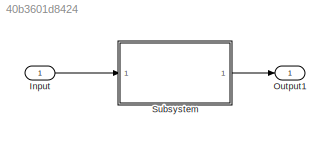
MODEL slx_40b3601d8424
KIND model
CONFIG AbsTol = auto
CONFIG EnableMultiTasking = off
CONFIG FixedStep = auto
CONFIG MaxStep = auto
CONFIG MinStep = auto
CONFIG RelTol = 1e-3
CONFIG SampleTimeConstraint = Unconstrained
CONFIG SolverName = FixedStepAuto
CONFIG StartTime = 0.0
CONFIG StopTime = T
BLOCK [Inport] Input
BLOCK [Outport] Output1
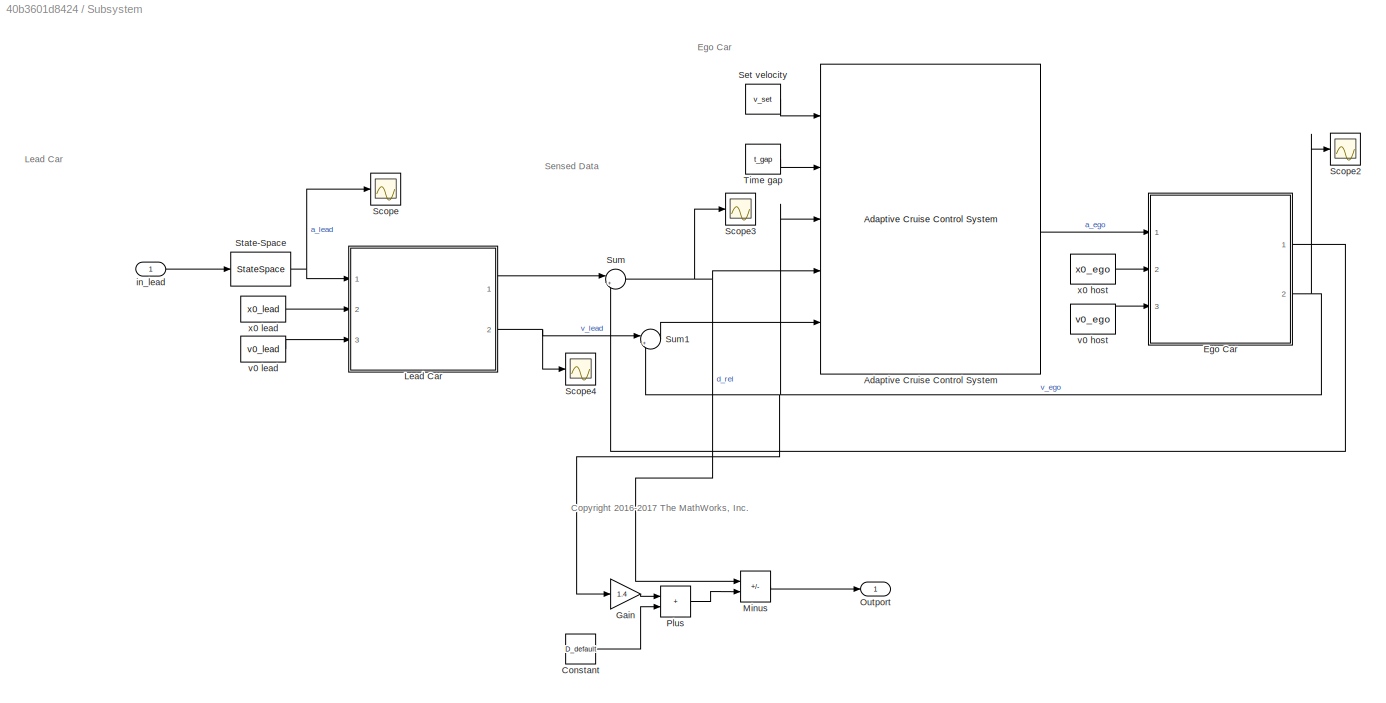
BLOCK [SubSystem] Subsystem
  Ports = [1, 1]
  RequestExecContextInheritance = off
BLOCK [Reference] Subsystem/Adaptive Cruise Control System  REF=mpcadaslib/Adaptive Cruise Control System
  Ports = [5, 1]
  SourceBlock = mpcadaslib/Adaptive Cruise Control System
  SourceProductBaseCode = MP
  SourceType = Adaptive cruise control (ACC) system
BLOCK [Constant] Subsystem/Constant
  Value = D_default
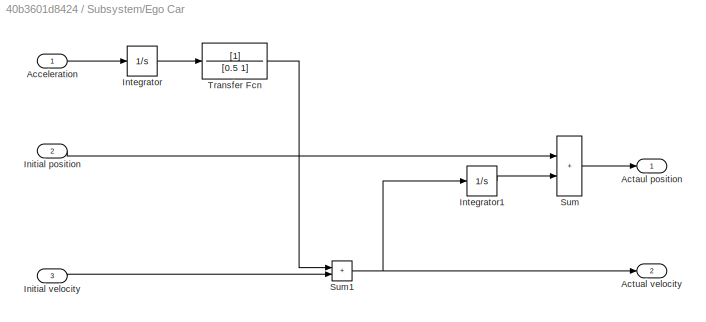
BLOCK [SubSystem] Subsystem/Ego Car
  Ports = [3, 2]
  RequestExecContextInheritance = off
BLOCK [Inport] Subsystem/Ego Car/Acceleration
BLOCK [Outport] Subsystem/Ego Car/Actaul position
  VectorParamsAs1DForOutWhenUnconnected = off
BLOCK [Outport] Subsystem/Ego Car/Actual velocity
  Port = 2
  VectorParamsAs1DForOutWhenUnconnected = off
BLOCK [Inport] Subsystem/Ego Car/Initial position
  Port = 2
BLOCK [Inport] Subsystem/Ego Car/Initial velocity
  Port = 3
BLOCK [Integrator] Subsystem/Ego Car/Integrator
  Ports = [1, 1]
BLOCK [Integrator] Subsystem/Ego Car/Integrator1
  Ports = [1, 1]
BLOCK [Sum] Subsystem/Ego Car/Sum
  IconShape = rectangular
  Ports = [2, 1]
BLOCK [Sum] Subsystem/Ego Car/Sum1
  IconShape = rectangular
  Ports = [2, 1]
BLOCK [TransferFcn] Subsystem/Ego Car/Transfer Fcn
  Denominator = [0.5 1]
BLOCK [Gain] Subsystem/Gain
  Gain = 1.4
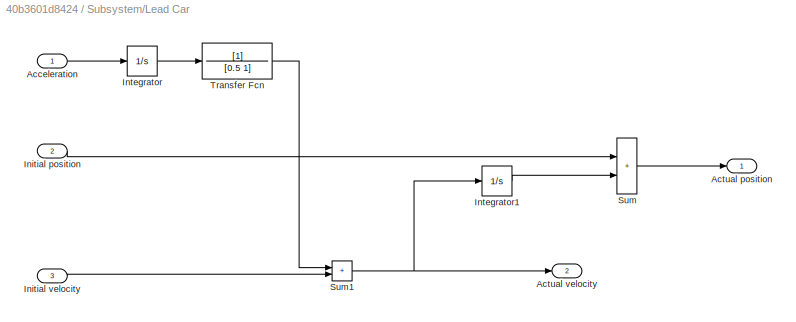
BLOCK [SubSystem] Subsystem/Lead Car
  Ports = [3, 2]
  RequestExecContextInheritance = off
BLOCK [Inport] Subsystem/Lead Car/Acceleration
BLOCK [Outport] Subsystem/Lead Car/Actual position
  VectorParamsAs1DForOutWhenUnconnected = off
BLOCK [Outport] Subsystem/Lead Car/Actual velocity
  Port = 2
  VectorParamsAs1DForOutWhenUnconnected = off
BLOCK [Inport] Subsystem/Lead Car/Initial position
  Port = 2
BLOCK [Inport] Subsystem/Lead Car/Initial velocity
  Port = 3
BLOCK [Integrator] Subsystem/Lead Car/Integrator
  Ports = [1, 1]
BLOCK [Integrator] Subsystem/Lead Car/Integrator1
  Ports = [1, 1]
BLOCK [Sum] Subsystem/Lead Car/Sum
  IconShape = rectangular
  Ports = [2, 1]
BLOCK [Sum] Subsystem/Lead Car/Sum1
  IconShape = rectangular
  Ports = [2, 1]
BLOCK [TransferFcn] Subsystem/Lead Car/Transfer Fcn
  Denominator = [0.5 1]
BLOCK [Sum] Subsystem/Minus
  IconShape = rectangular
  Inputs = +-
  Ports = [2, 1]
BLOCK [Outport] Subsystem/Outport
BLOCK [Sum] Subsystem/Plus
  IconShape = rectangular
  Ports = [2, 1]
BLOCK [Scope] Subsystem/Scope
  Floating = off
  NumInputPorts = 1
  Ports = [1]
  ScopeSpecificationString = Simulink.scopes.TimeScopeBlockCfg('CurrentConfiguration', extmgr.ConfigurationSet(extmgr.Configuration('Core','General UI',true),extmgr.Configuration('Core','Source UI',true),extmgr.Configuration('Sources','WiredSimulink',true),extmgr.Configuration('Visuals','Time Domain',true,'SerializedDisplays',{struct('MinYLimReal','-1.21635','MaxYLimReal','1.10113','YLabelReal','','MinYLimMag','0.00000','MaxY...<+1374ch>
BLOCK [Scope] Subsystem/Scope2
  Floating = off
  NumInputPorts = 1
  Ports = [1]
  ScopeSpecificationString = Simulink.scopes.TimeScopeBlockCfg('CurrentConfiguration', extmgr.ConfigurationSet(extmgr.Configuration('Core','General UI',true),extmgr.Configuration('Core','Source UI',true),extmgr.Configuration('Sources','WiredSimulink',true,'DataLoggingVariableName','ScopeData1'),extmgr.Configuration('Visuals','Time Domain',true,'SerializedDisplays',{struct('MinYLimReal','10.35598','MaxYLimReal','31.99062','YLa...<+1418ch>
BLOCK [Scope] Subsystem/Scope3
  Floating = off
  NumInputPorts = 1
  Ports = [1]
  ScopeSpecificationString = Simulink.scopes.TimeScopeBlockCfg('CurrentConfiguration', extmgr.ConfigurationSet(extmgr.Configuration('Core','General UI',true),extmgr.Configuration('Core','Source UI',true),extmgr.Configuration('Sources','WiredSimulink',true,'DataLoggingVariableName','ScopeData2'),extmgr.Configuration('Visuals','Time Domain',true,'SerializedDisplays',{struct('MinYLimReal','-841.23886','MaxYLimReal','7971.14972',...<+1431ch>
BLOCK [Scope] Subsystem/Scope4
  Floating = off
  NumInputPorts = 1
  Ports = [1]
  ScopeSpecificationString = Simulink.scopes.TimeScopeBlockCfg('CurrentConfiguration', extmgr.ConfigurationSet(extmgr.Configuration('Core','General UI',true),extmgr.Configuration('Core','Source UI',true),extmgr.Configuration('Sources','WiredSimulink',true,'DataLoggingVariableName','ScopeData3'),extmgr.Configuration('Visuals','Time Domain',true,'SerializedDisplays',{struct('MinYLimReal','22.48594','MaxYLimReal','47.62657','YLa...<+1420ch>
BLOCK [Constant] Subsystem/Set velocity
  SampleTime = Ts
  Value = v_set
BLOCK [StateSpace] Subsystem/State-Space
  A = -10
  B = 10
  D = 0
  InitialCondition = 0
  NameLocation = top
  Ports = [1, 1]
BLOCK [Sum] Subsystem/Sum
  Inputs = |+-
  Ports = [2, 1]
BLOCK [Sum] Subsystem/Sum1
  Inputs = |+-
  Ports = [2, 1]
BLOCK [Constant] Subsystem/Time gap
  SampleTime = Ts
  Value = t_gap
BLOCK [Inport] Subsystem/in_lead
BLOCK [Constant] Subsystem/v0 host
  SampleTime = Ts
  Value = v0_ego
BLOCK [Constant] Subsystem/v0 lead
  SampleTime = Ts
  Value = v0_lead
BLOCK [Constant] Subsystem/x0 host
  SampleTime = Ts
  Value = x0_ego
BLOCK [Constant] Subsystem/x0 lead
  SampleTime = Ts
  Value = x0_lead
ANNOTATION Subsystem: <copyright redacted>
ANNOTATION Subsystem: Ego Car
ANNOTATION Subsystem: Lead Car
ANNOTATION Subsystem: Sensed Data
LINE Input:1 -> Subsystem:1
LINE Subsystem/Adaptive Cruise Control System:1 -> Subsystem/Ego Car:1
LINE Subsystem/Constant:1 -> Subsystem/Plus:2
LINE Subsystem/Ego Car/Acceleration:1 -> Subsystem/Ego Car/Integrator:1
LINE Subsystem/Ego Car/Initial position:1 -> Subsystem/Ego Car/Sum:1
LINE Subsystem/Ego Car/Initial velocity:1 -> Subsystem/Ego Car/Sum1:2
LINE Subsystem/Ego Car/Integrator1:1 -> Subsystem/Ego Car/Sum:2
LINE Subsystem/Ego Car/Integrator:1 -> Subsystem/Ego Car/Transfer Fcn:1
NET Subsystem/Ego Car/Sum1:1 -> Subsystem/Ego Car/Actual velocity:1, Subsystem/Ego Car/Integrator1:1
LINE Subsystem/Ego Car/Sum:1 -> Subsystem/Ego Car/Actaul position:1
LINE Subsystem/Ego Car/Transfer Fcn:1 -> Subsystem/Ego Car/Sum1:1
LINE Subsystem/Ego Car:1 -> Subsystem/Sum:2
NET Subsystem/Ego Car:2 -> Subsystem/Adaptive Cruise Control System:3, Subsystem/Gain:1, Subsystem/Scope2:1, Subsystem/Sum1:2
LINE Subsystem/Gain:1 -> Subsystem/Plus:1
LINE Subsystem/Lead Car/Acceleration:1 -> Subsystem/Lead Car/Integrator:1
LINE Subsystem/Lead Car/Initial position:1 -> Subsystem/Lead Car/Sum:1
LINE Subsystem/Lead Car/Initial velocity:1 -> Subsystem/Lead Car/Sum1:2
LINE Subsystem/Lead Car/Integrator1:1 -> Subsystem/Lead Car/Sum:2
LINE Subsystem/Lead Car/Integrator:1 -> Subsystem/Lead Car/Transfer Fcn:1
NET Subsystem/Lead Car/Sum1:1 -> Subsystem/Lead Car/Actual velocity:1, Subsystem/Lead Car/Integrator1:1
LINE Subsystem/Lead Car/Sum:1 -> Subsystem/Lead Car/Actual position:1
LINE Subsystem/Lead Car/Transfer Fcn:1 -> Subsystem/Lead Car/Sum1:1
LINE Subsystem/Lead Car:1 -> Subsystem/Sum:1
NET Subsystem/Lead Car:2 -> Subsystem/Scope4:1, Subsystem/Sum1:1
LINE Subsystem/Minus:1 -> Subsystem/Outport:1
LINE Subsystem/Plus:1 -> Subsystem/Minus:2
LINE Subsystem/Set velocity:1 -> Subsystem/Adaptive Cruise Control System:1
NET Subsystem/State-Space:1 -> Subsystem/Lead Car:1, Subsystem/Scope:1
LINE Subsystem/Sum1:1 -> Subsystem/Adaptive Cruise Control System:5
NET Subsystem/Sum:1 -> Subsystem/Adaptive Cruise Control System:4, Subsystem/Minus:1, Subsystem/Scope3:1
LINE Subsystem/Time gap:1 -> Subsystem/Adaptive Cruise Control System:2
LINE Subsystem/in_lead:1 -> Subsystem/State-Space:1
LINE Subsystem/v0 host:1 -> Subsystem/Ego Car:3
LINE Subsystem/v0 lead:1 -> Subsystem/Lead Car:3
LINE Subsystem/x0 host:1 -> Subsystem/Ego Car:2
LINE Subsystem/x0 lead:1 -> Subsystem/Lead Car:2
LINE Subsystem:1 -> Output1:1
note: NET lines group one-source signal fan-out (src -> all destinations, sorted); 1:1 wires keep LINE
